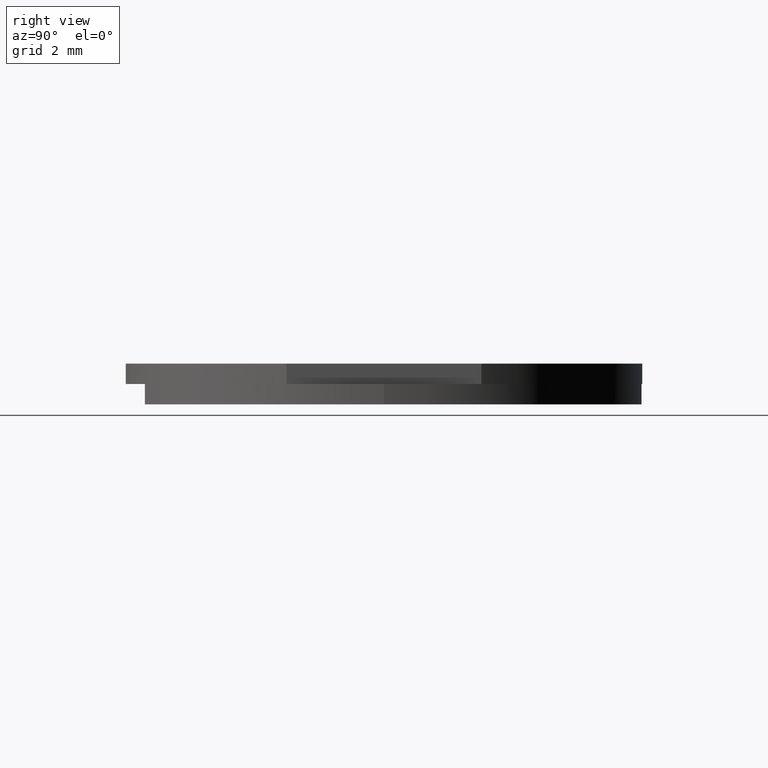
[diagram: clean part render]
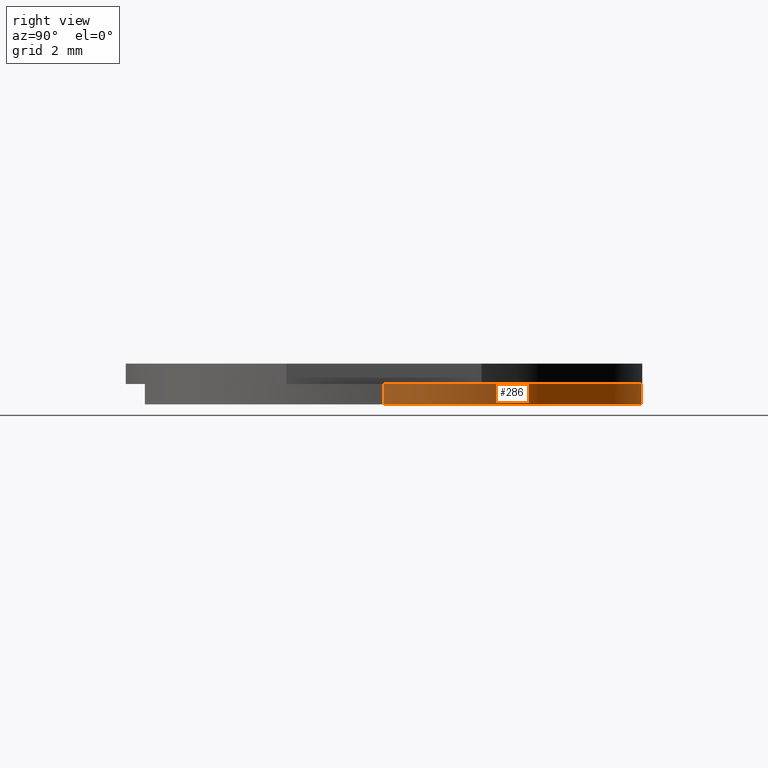
[diagram: same view with one face highlighted and labeled with its STEP entity id]
A machine part, right view. The second image highlights one B-rep face of the part: STEP entity #286.
In plain terms, the highlighted cylindrical surface (partial cylindrical patch) has radius 6.35 mm, axis along (-0, -0, -1).
Its self-contained STEP definition (entity closure, byte-faithful):
#22 = ORIENTED_EDGE ( 'NONE', *, *, #140, .F. ) ;
#23 = CARTESIAN_POINT ( 'NONE',  ( 12.17957565082418014, -0.8299026143560144231, 3.986184743181585777 ) ) ;
#35 = ORIENTED_EDGE ( 'NONE', *, *, #362, .T. ) ;
#42 = ORIENTED_EDGE ( 'NONE', *, *, #403, .F. ) ;
#43 = AXIS2_PLACEMENT_3D ( 'NONE', #297, #149, #457 ) ;
#97 = CARTESIAN_POINT ( 'NONE',  ( 5.829575650824181388, -0.8299026143560144231, 3.986184743181585777 ) ) ;
#111 = CARTESIAN_POINT ( 'NONE',  ( 18.52957565082417801, -0.8299026143560136459, 3.486184743181585333 ) ) ;
#119 = CYLINDRICAL_SURFACE ( 'NONE', #43, 6.349999999999999645 ) ;
#135 = CARTESIAN_POINT ( 'NONE',  ( 5.829575650824181388, -0.8299026143560144231, 3.986184743181585777 ) ) ;
#140 = EDGE_CURVE ( 'NONE', #341, #415, #523, .T. ) ;
#144 = CARTESIAN_POINT ( 'NONE',  ( 12.17957565082418014, -0.8299026143560144231, 3.486184743181585333 ) ) ;
#145 = AXIS2_PLACEMENT_3D ( 'NONE', #23, #406, #364 ) ;
#149 = DIRECTION ( 'NONE',  ( -0.0000000000000000000, -0.0000000000000000000, -1.000000000000000000 ) ) ;
#193 = CARTESIAN_POINT ( 'NONE',  ( 18.52957565082417801, -0.8299026143560136459, 3.986184743181585777 ) ) ;
#195 = CARTESIAN_POINT ( 'NONE',  ( 5.829575650824181388, -0.8299026143560144231, 3.486184743181585333 ) ) ;
#208 = VERTEX_POINT ( 'NONE', #111 ) ;
#244 = CIRCLE ( 'NONE', #557, 6.349999999999997868 ) ;
#248 = DIRECTION ( 'NONE',  ( 0.0000000000000000000, 0.0000000000000000000, 1.000000000000000000 ) ) ;
#255 = VERTEX_POINT ( 'NONE', #461 ) ;
#261 = ORIENTED_EDGE ( 'NONE', *, *, #280, .T. ) ;
#276 = DIRECTION ( 'NONE',  ( -0.0000000000000000000, -0.0000000000000000000, -1.000000000000000000 ) ) ;
#280 = EDGE_CURVE ( 'NONE', #255, #208, #336, .T. ) ;
#286 = ADVANCED_FACE ( 'NONE', ( #501 ), #119, .T. ) ;
#291 = DIRECTION ( 'NONE',  ( 1.000000000000000000, 0.0000000000000000000, 0.0000000000000000000 ) ) ;
#297 = CARTESIAN_POINT ( 'NONE',  ( 12.17957565082418014, -0.8299026143560144231, 3.986184743181585777 ) ) ;
#336 = LINE ( 'NONE', #193, #547 ) ;
#341 = VERTEX_POINT ( 'NONE', #97 ) ;
#362 = EDGE_CURVE ( 'NONE', #208, #415, #244, .T. ) ;
#364 = DIRECTION ( 'NONE',  ( 1.000000000000000000, 0.0000000000000000000, 0.0000000000000000000 ) ) ;
#403 = EDGE_CURVE ( 'NONE', #255, #341, #536, .T. ) ;
#406 = DIRECTION ( 'NONE',  ( 0.0000000000000000000, 0.0000000000000000000, 1.000000000000000000 ) ) ;
#415 = VERTEX_POINT ( 'NONE', #195 ) ;
#457 = DIRECTION ( 'NONE',  ( -1.000000000000000000, 0.0000000000000000000, 0.0000000000000000000 ) ) ;
#461 = CARTESIAN_POINT ( 'NONE',  ( 18.52957565082417801, -0.8299026143560136459, 3.986184743181585777 ) ) ;
#501 = FACE_OUTER_BOUND ( 'NONE', #543, .T. ) ;
#523 = LINE ( 'NONE', #135, #548 ) ;
#536 = CIRCLE ( 'NONE', #145, 6.349999999999997868 ) ;
#537 = DIRECTION ( 'NONE',  ( -0.0000000000000000000, -0.0000000000000000000, -1.000000000000000000 ) ) ;
#543 = EDGE_LOOP ( 'NONE', ( #42, #261, #35, #22 ) ) ;
#547 = VECTOR ( 'NONE', #537, 1000.000000000000000 ) ;
#548 = VECTOR ( 'NONE', #276, 1000.000000000000000 ) ;
#557 = AXIS2_PLACEMENT_3D ( 'NONE', #144, #248, #291 ) ;